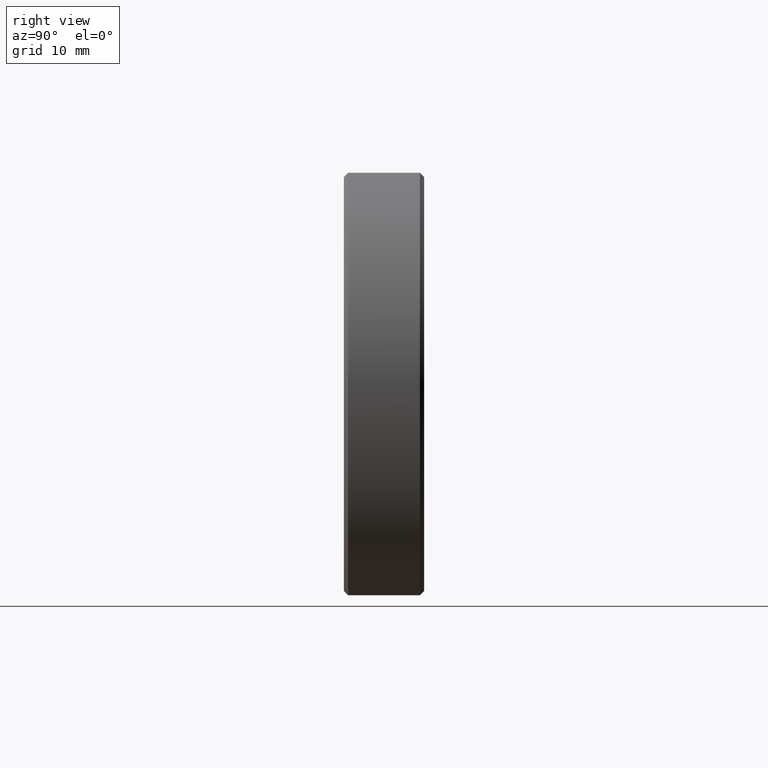
[diagram: clean part render]
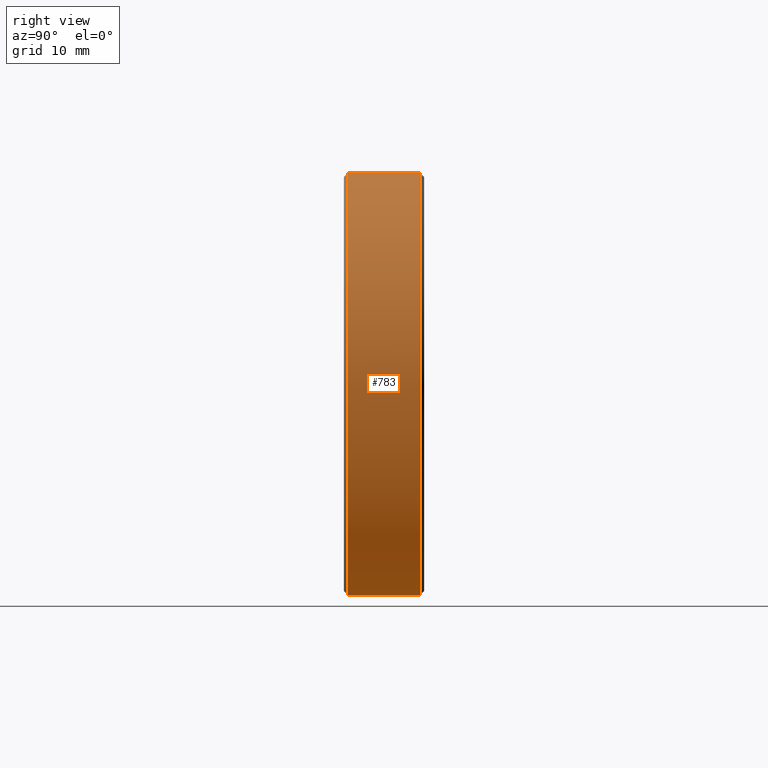
[diagram: same view with one face highlighted and labeled with its STEP entity id]
A machine part, right view. The second image highlights one B-rep face of the part: STEP entity #783.
In plain terms, the highlighted cylindrical surface (partial cylindrical patch) has radius 35 mm, axis along (-0, -1, -0).
Its self-contained STEP definition (entity closure, byte-faithful):
#5 = CARTESIAN_POINT ( 'NONE',  ( 0.0000000000000000000, 9.000000000000000000, 0.0000000000000000000 ) ) ;
#7 = CARTESIAN_POINT ( 'NONE',  ( 24.49489742783177700, 0.4999999999999865700, 24.99999999999999600 ) ) ;
#23 = DIRECTION ( 'NONE',  ( -8.881784197001252300E-016, 0.0000000000000000000, 1.000000000000000000 ) ) ;
#33 = DIRECTION ( 'NONE',  ( 0.0000000000000000000, 0.0000000000000000000, -1.000000000000000000 ) ) ;
#36 = CARTESIAN_POINT ( 'NONE',  ( 24.49489742783177700, 9.000000000000000000, 24.99999999999999600 ) ) ;
#57 = CARTESIAN_POINT ( 'NONE',  ( 0.0000000000000000000, 9.500000000000000000, 0.0000000000000000000 ) ) ;
#108 = CARTESIAN_POINT ( 'NONE',  ( 24.49489742783177700, 9.000000000000000000, -25.00000000000000700 ) ) ;
#115 = CARTESIAN_POINT ( 'NONE',  ( 24.49489742783177700, 9.500000000000000000, 24.99999999999999600 ) ) ;
#174 = DIRECTION ( 'NONE',  ( -0.0000000000000000000, -1.000000000000000000, -0.0000000000000000000 ) ) ;
#383 = CARTESIAN_POINT ( 'NONE',  ( 24.49489742783177700, 0.4999999999999865700, -25.00000000000000700 ) ) ;
#435 = DIRECTION ( 'NONE',  ( -0.0000000000000000000, -1.000000000000000000, -0.0000000000000000000 ) ) ;
#441 = DIRECTION ( 'NONE',  ( -0.0000000000000000000, -1.000000000000000000, -0.0000000000000000000 ) ) ;
#444 = CARTESIAN_POINT ( 'NONE',  ( 24.49489742783177700, 9.500000000000000000, -25.00000000000000700 ) ) ;
#452 = DIRECTION ( 'NONE',  ( -0.0000000000000000000, 1.000000000000000000, -0.0000000000000000000 ) ) ;
#453 = CARTESIAN_POINT ( 'NONE',  ( 0.0000000000000000000, 0.4999999999999865700, 0.0000000000000000000 ) ) ;
#472 = DIRECTION ( 'NONE',  ( 0.0000000000000000000, 0.0000000000000000000, 1.000000000000000000 ) ) ;
#514 = DIRECTION ( 'NONE',  ( 0.0000000000000000000, -1.000000000000000000, 0.0000000000000000000 ) ) ;
#550 = EDGE_CURVE ( 'NONE', #1015, #1067, #934, .T. ) ;
#580 = EDGE_CURVE ( 'NONE', #1221, #1040, #917, .T. ) ;
#677 = AXIS2_PLACEMENT_3D ( 'NONE', #57, #441, #33 ) ;
#689 = AXIS2_PLACEMENT_3D ( 'NONE', #5, #514, #23 ) ;
#701 = EDGE_CURVE ( 'NONE', #1015, #1040, #866, .T. ) ;
#714 = AXIS2_PLACEMENT_3D ( 'NONE', #453, #452, #472 ) ;
#758 = EDGE_CURVE ( 'NONE', #1067, #1221, #860, .T. ) ;
#783 = ADVANCED_FACE ( 'NONE', ( #838 ), #1459, .T. ) ;
#838 = FACE_OUTER_BOUND ( 'NONE', #1080, .T. ) ;
#860 = LINE ( 'NONE', #115, #863 ) ;
#863 = VECTOR ( 'NONE', #435, 1000.000000000000000 ) ;
#866 = LINE ( 'NONE', #444, #883 ) ;
#883 = VECTOR ( 'NONE', #174, 1000.000000000000000 ) ;
#917 = CIRCLE ( 'NONE', #714, 35.00000000000000000 ) ;
#934 = CIRCLE ( 'NONE', #689, 35.00000000000000000 ) ;
#1015 = VERTEX_POINT ( 'NONE', #108 ) ;
#1040 = VERTEX_POINT ( 'NONE', #383 ) ;
#1067 = VERTEX_POINT ( 'NONE', #36 ) ;
#1080 = EDGE_LOOP ( 'NONE', ( #1346, #1363, #1234, #1156 ) ) ;
#1156 = ORIENTED_EDGE ( 'NONE', *, *, #550, .T. ) ;
#1221 = VERTEX_POINT ( 'NONE', #7 ) ;
#1234 = ORIENTED_EDGE ( 'NONE', *, *, #701, .F. ) ;
#1346 = ORIENTED_EDGE ( 'NONE', *, *, #758, .T. ) ;
#1363 = ORIENTED_EDGE ( 'NONE', *, *, #580, .T. ) ;
#1459 = CYLINDRICAL_SURFACE ( 'NONE', #677, 35.00000000000000000 ) ;